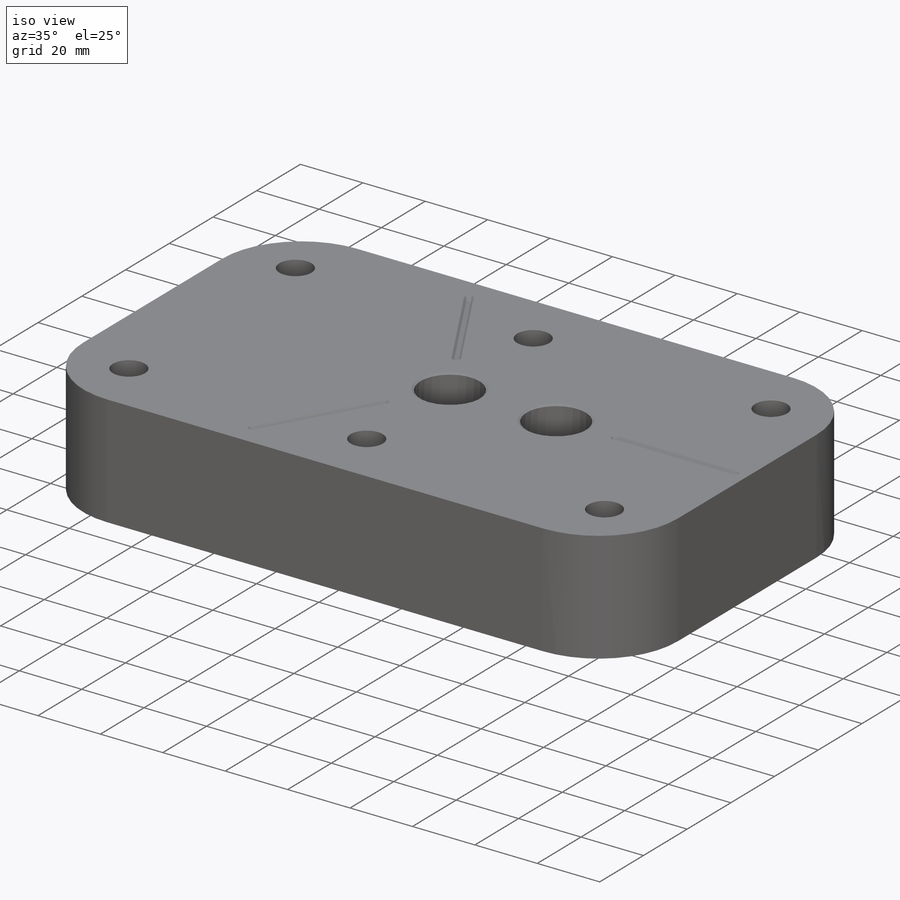
[diagram: iso view]
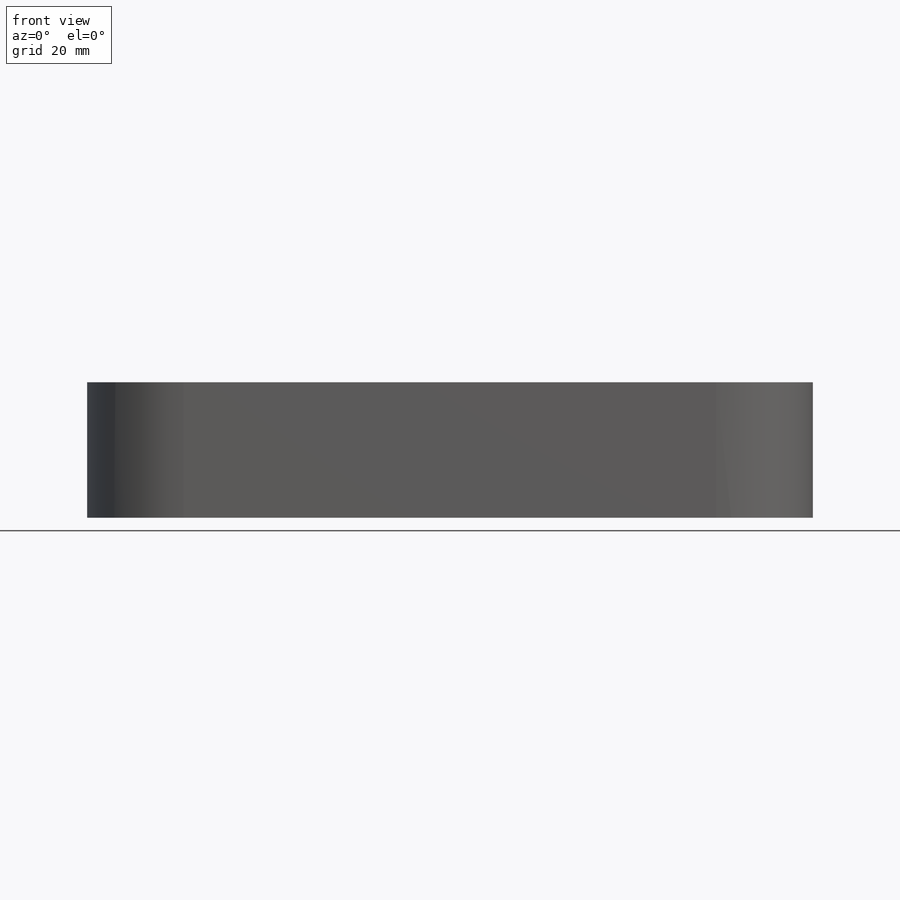
[diagram: front view]
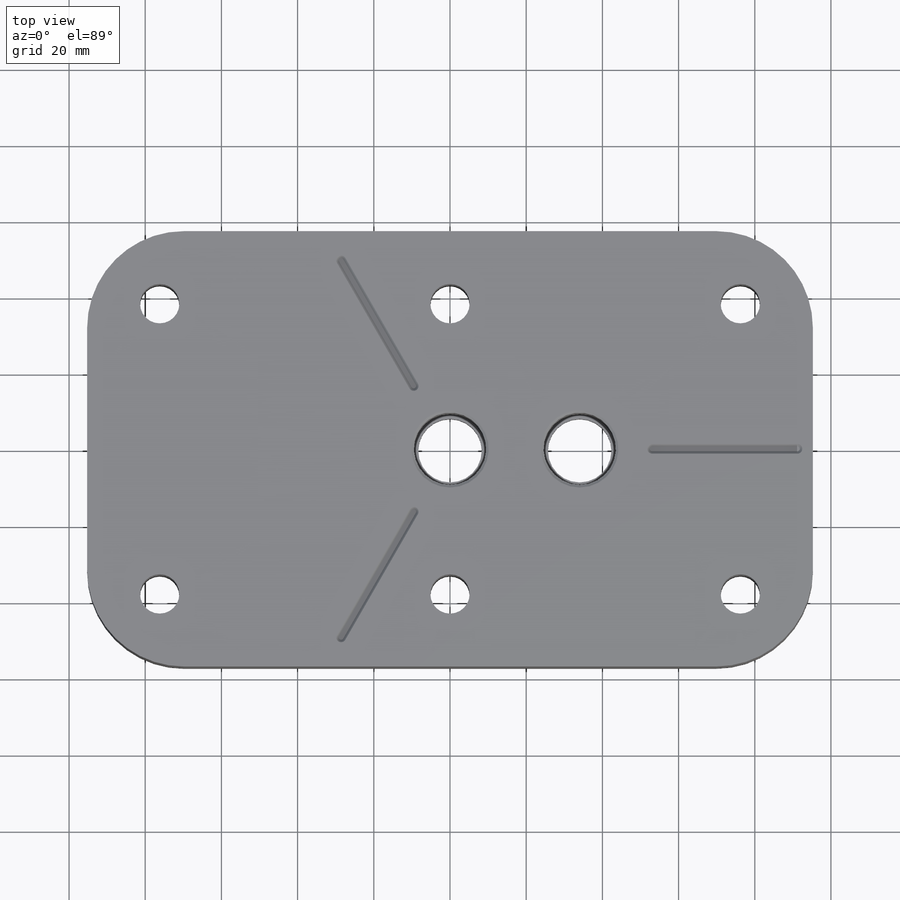
[diagram: top view]
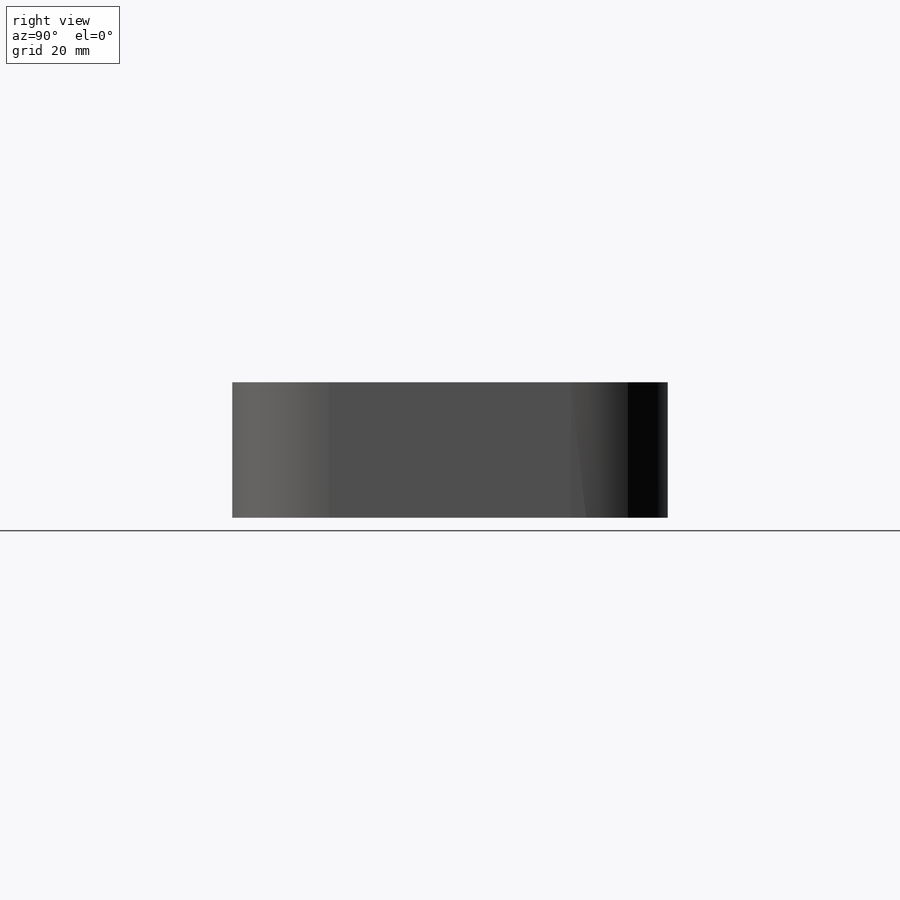
[diagram: right view]
SOLIDWORKS PART (.sldprt)
format: sldprt  version: not decoded by parser v0  size: 638,464 bytes
history: native  units: mm
features: sketch x8, hole x3, material x1, extrude x1, pattern_linear x1, fillet x1, cut_extrude x1 + 1 further entry (+13 scaffold rows collapsed)
feature tree (30):
  scaffold x13  (default folders/planes/origin — collapsed)
  material  "304 SSTL"
  "Origin"  ID=-1
  sketch  "Sketch1"  dims[D1=114.3mm D2=190.5mm]
  extrude  "Extrude1"  Depth=35.56mm
  hole  "3/8 Clearance Hole1"  Diameter=10.31748mm Depth=35.56mm
  sketch  "Sketch3"  dims[D1=76.2mm D2=38.1mm]
  sketch  "Sketch2"  dims[hole-wizard template sketch: 59 standard entries collapsed; hole parameters kept: c18.Thru Hole Dia.=~10.31748mm c18.Thru Hole Depth=35.56mm]
  pattern_linear  "LPattern6"  Count1=3 Count2=2 Spacing1=76.2mm Spacing2=76.2mm
  hole  "5/8-11 Tapped Hole1"  Diameter=15.875mm Depth=35.56mm
  sketch  "Sketch5"  dims[D1=34.036mm]
  sketch  "Sketch4"  dims[hole-wizard template sketch: 54 standard entries collapsed; hole parameters kept: c17.Thread Major Dia.=15.875mm c17.Thru Tap Drill Depth=35.56mm c17.Near C'Sink Dia.=17.145mm c17.D4=~3.666174mm c17.Near C'Sink Angle=120.0deg]
  fillet  "Fillet1"  Radius=25.4mm
  sketch  "Sketch6"  dims[c1.D1=~44.193672mm c2.D1=120.0deg c2.D2=38.1mm c2.D3=19.05mm c2.D4=19.05mm c2.D5=19.05mm c2.D8=38.1mm c3.D8=120.0deg c3.D6=1.27mm c3.D7=1.27mm]
  cut_extrude  "Extrude2"  Depth=0.635mm
  hole  "Tapped Hole for 5/8-11 Helicoil2"  Diameter=16.66748mm Depth=38.0492mm
  sketch  "Sketch10"
  sketch  "Sketch9"  dims[hole-wizard template sketch: 26 standard entries collapsed; hole parameters kept: c8.Tap Drill Dia.=~16.66748mm c8.Tap Drill Depth=38.0492mm c8.Thread Major Dia.=~18.99158mm c8.Thread Depth=27.7876mm c8.Near C'Sink Dia.=20.32mm c8.D6=~4.399409mm c8.Near C'Sink Angle=120.0deg c8.D7=~14.816244mm c8.Drill Angle=118.0deg]
decode coverage: 14 of 15 modeling features carry decoded parameters; 1 rows unclassified (native names shown)
note: ~ marks probable driven/reference dimensions
note: suppression state not decoded; provenance and decode notes live in map.json
